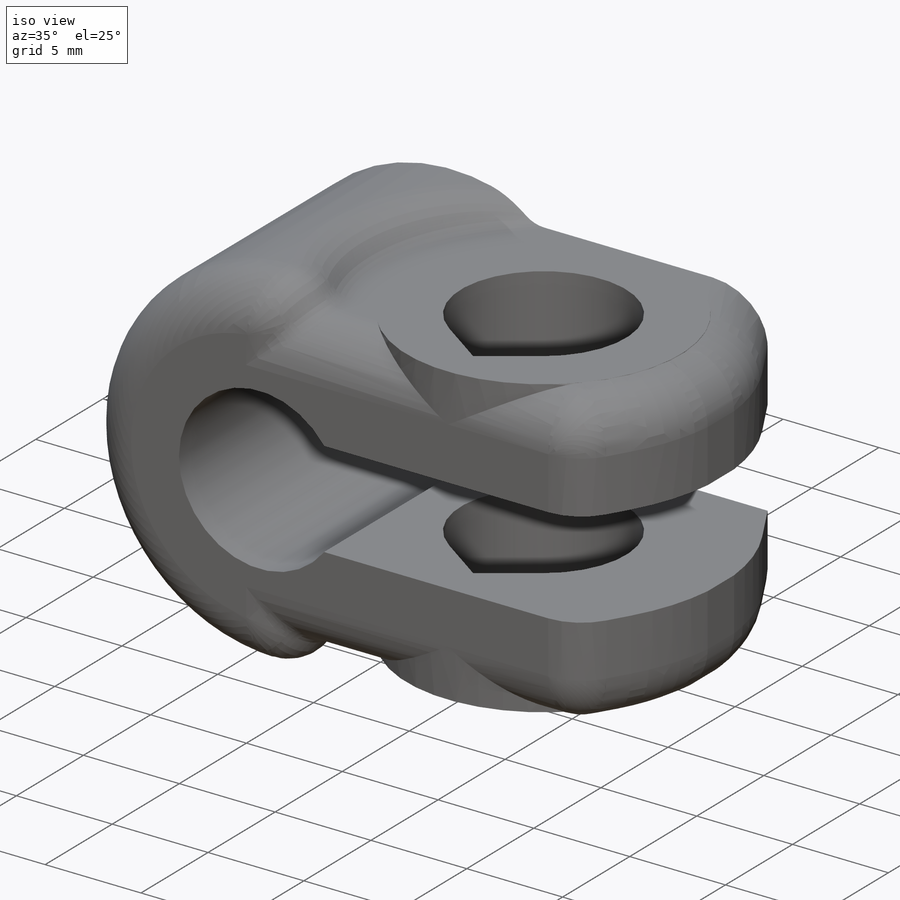
[diagram: iso view]
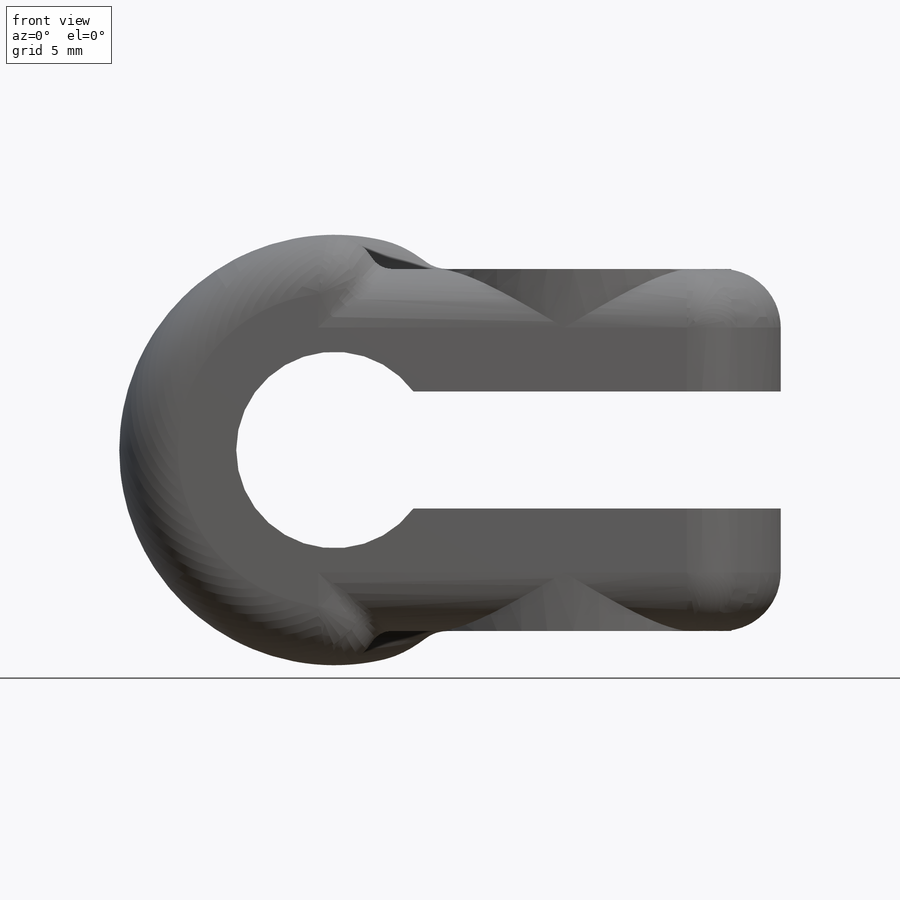
[diagram: front view]
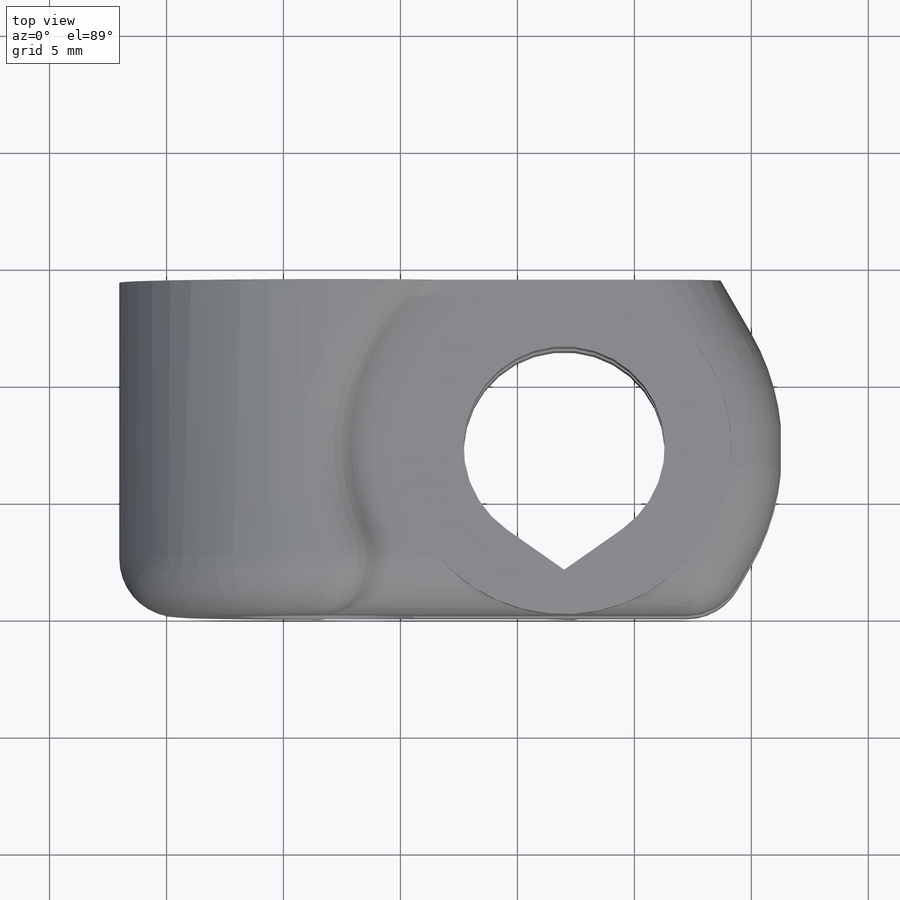
[diagram: top view]
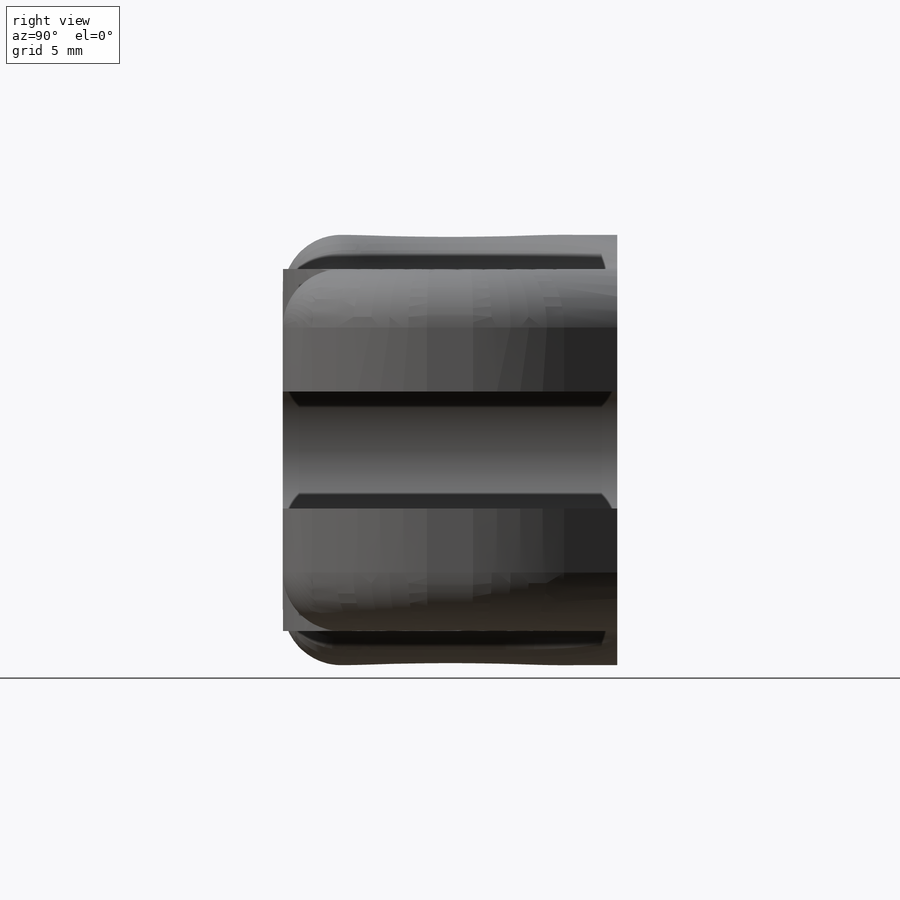
[diagram: right view]
SOLIDWORKS PART (.sldprt)
format: sldprt  version: not decoded by parser v0  size: 511,488 bytes
history: native  units: mm
features: sketch x7, cut_extrude x4, fillet x4, extrude x3, material x1 (+11 scaffold rows collapsed)
feature tree (30):
  scaffold x11  (default folders/planes/origin — collapsed)
  material  "Material <not specified>"
  sketch  "Sketch1"  dims[D1=5.0mm D2=5.0mm D3=5.0mm]
  extrude  "Boss-Extrude1"  Depth=14.3mm
  sketch  "Sketch6"  dims[c1.D1=8.6mm c1.D2=8.6mm c1.D3=8.6mm c2.D1=8.6mm c2.D4=8.6mm c3.D1=7.5mm c3.D2=9.2561mm c3.D3=7.5mm c4.D1=7.15mm c4.D3=~3.240925mm c5.D3=35.0deg c5.D1=0.0mm]
  cut_extrude  "Cut-Extrude3"  [1 undecoded]
  sketch  "Sketch7"  dims[c1.D1=~3.811058mm c2.D1=30.0deg c2.D2=~4.775037mm c3.D2=30.0deg]
  cut_extrude  "Cut-Extrude4"  [1 undecoded]
  sketch  "Sketch8"  dims[D1=7.5mm]
  cut_extrude  "Cut-Extrude5"  Depth=10mm
  sketch  "Sketch9"  dims[D1=~5.204201mm]
  cut_extrude  "Cut-Extrude6"  Depth=10mm
  fillet  "Fillet1"  Radius=2.5mm
  fillet  "Fillet2"  Radius=2.5mm
  fillet  "Fillet3"  Radius=2mm
  sketch  "Sketch10"
  extrude  "Boss-Extrude2"  Depth=3mm
  sketch  "Sketch11"
  extrude  "Boss-Extrude3"  Depth=3mm
  fillet  "Fillet5"  Radius=1mm
decode coverage: 14 of 18 modeling features carry decoded parameters
note: ~ marks probable driven/reference dimensions
note: 2 parameter values undecoded
note: suppression state not decoded; provenance and decode notes live in map.json
